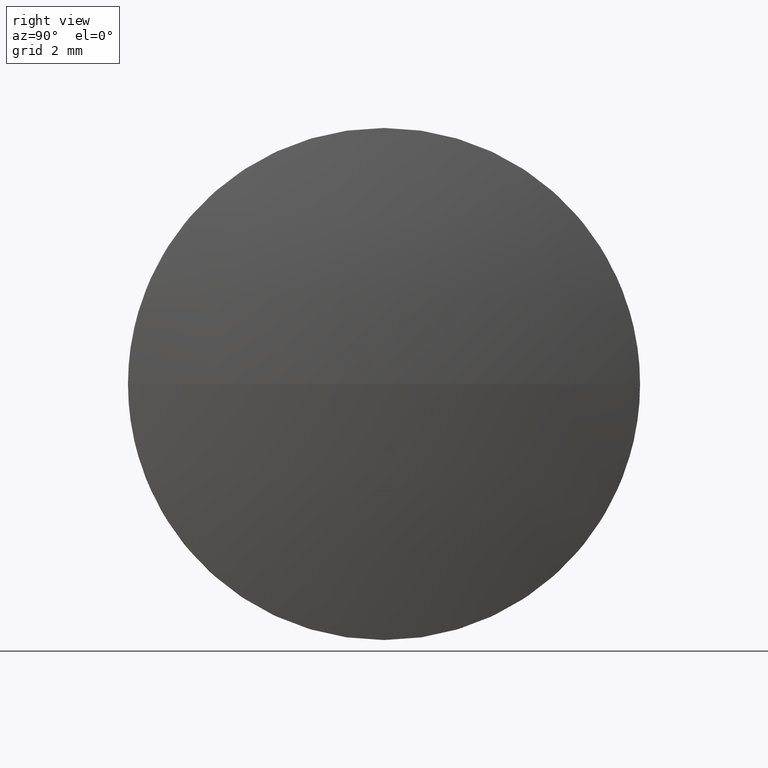
[diagram: clean part render]
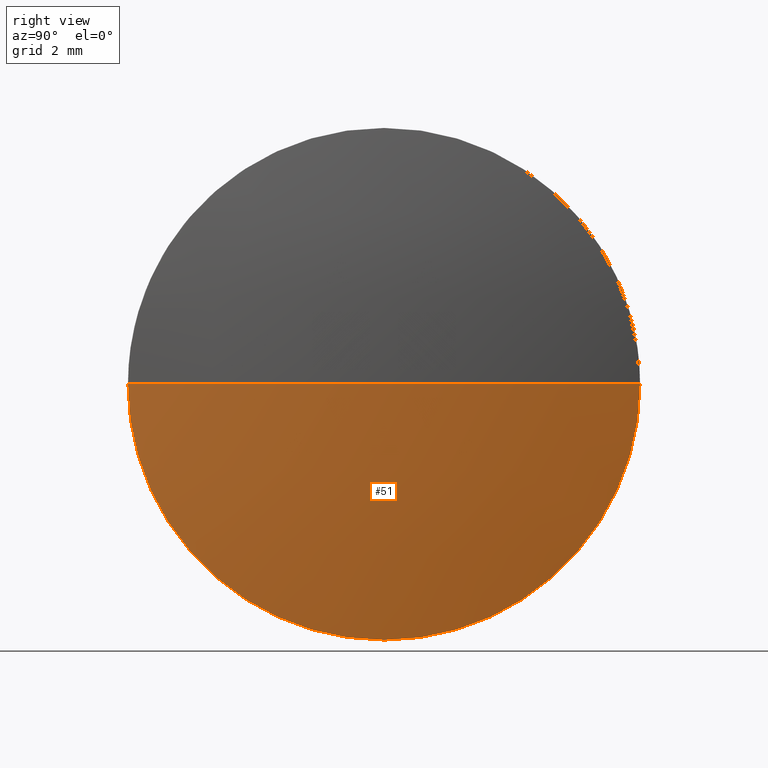
[diagram: same view with one face highlighted and labeled with its STEP entity id]
A machine part, right view. The second image highlights one B-rep face of the part: STEP entity #51.
In plain terms, the highlighted spherical surface has radius 25.7552 mm.
Its self-contained STEP definition (entity closure, byte-faithful):
#2 = VERTEX_POINT ( 'NONE', #40 ) ;
#21 = EDGE_CURVE ( 'NONE', #2, #185, #68, .T. ) ;
#26 = CARTESIAN_POINT ( 'NONE',  ( 464.8755895717470100, 129.0640257703732300, 0.0000000000000000000 ) ) ;
#28 = CIRCLE ( 'NONE', #130, 5.000000000000004400 ) ;
#31 = DIRECTION ( 'NONE',  ( 0.0000000000000000000, 1.224646799147353200E-016, -1.000000000000000000 ) ) ;
#34 = SPHERICAL_SURFACE ( 'NONE', #84, 25.75520408163263400 ) ;
#40 = CARTESIAN_POINT ( 'NONE',  ( 465.3655895717470200, 129.0640257703731500, 0.0000000000000000000 ) ) ;
#42 = EDGE_LOOP ( 'NONE', ( #112, #87, #57, #64 ) ) ;
#51 = ADVANCED_FACE ( 'NONE', ( #179 ), #34, .T. ) ;
#57 = ORIENTED_EDGE ( 'NONE', *, *, #94, .F. ) ;
#59 = EDGE_CURVE ( 'NONE', #2, #145, #80, .T. ) ;
#63 = CIRCLE ( 'NONE', #161, 5.000000000000004400 ) ;
#64 = ORIENTED_EDGE ( 'NONE', *, *, #176, .F. ) ;
#68 = CIRCLE ( 'NONE', #97, 25.75520408163262000 ) ;
#71 = DIRECTION ( 'NONE',  ( 0.0000000000000000000, 0.0000000000000000000, 1.000000000000000000 ) ) ;
#72 = DIRECTION ( 'NONE',  ( -1.000000000000000000, -0.0000000000000000000, -0.0000000000000000000 ) ) ;
#74 = DIRECTION ( 'NONE',  ( 0.0000000000000000000, 0.0000000000000000000, 1.000000000000000000 ) ) ;
#76 = VERTEX_POINT ( 'NONE', #108 ) ;
#80 = CIRCLE ( 'NONE', #146, 25.75520408163264800 ) ;
#84 = AXIS2_PLACEMENT_3D ( 'NONE', #90, #137, #155 ) ;
#87 = ORIENTED_EDGE ( 'NONE', *, *, #59, .T. ) ;
#88 = CARTESIAN_POINT ( 'NONE',  ( 439.6103854901143700, 129.0640257703731500, 0.0000000000000000000 ) ) ;
#90 = CARTESIAN_POINT ( 'NONE',  ( 439.6103854901143700, 129.0640257703731500, 0.0000000000000000000 ) ) ;
#91 = CARTESIAN_POINT ( 'NONE',  ( 439.6103854901143700, 129.0640257703731500, 0.0000000000000000000 ) ) ;
#94 = EDGE_CURVE ( 'NONE', #76, #145, #28, .T. ) ;
#97 = AXIS2_PLACEMENT_3D ( 'NONE', #88, #121, #168 ) ;
#108 = CARTESIAN_POINT ( 'NONE',  ( 464.8755895717470100, 129.0640257703732300, -5.000000000000004400 ) ) ;
#112 = ORIENTED_EDGE ( 'NONE', *, *, #21, .F. ) ;
#121 = DIRECTION ( 'NONE',  ( -0.0000000000000000000, 0.0000000000000000000, 1.000000000000000000 ) ) ;
#130 = AXIS2_PLACEMENT_3D ( 'NONE', #177, #72, #71 ) ;
#137 = DIRECTION ( 'NONE',  ( -0.0000000000000000000, 0.0000000000000000000, -1.000000000000000000 ) ) ;
#141 = DIRECTION ( 'NONE',  ( 0.0000000000000000000, 1.000000000000000000, 1.224646799147352700E-016 ) ) ;
#145 = VERTEX_POINT ( 'NONE', #181 ) ;
#146 = AXIS2_PLACEMENT_3D ( 'NONE', #91, #31, #141 ) ;
#155 = DIRECTION ( 'NONE',  ( 0.0000000000000000000, 1.000000000000000000, 0.0000000000000000000 ) ) ;
#161 = AXIS2_PLACEMENT_3D ( 'NONE', #26, #165, #74 ) ;
#165 = DIRECTION ( 'NONE',  ( -1.000000000000000000, -0.0000000000000000000, -0.0000000000000000000 ) ) ;
#168 = DIRECTION ( 'NONE',  ( 1.000000000000000000, 0.0000000000000000000, 0.0000000000000000000 ) ) ;
#176 = EDGE_CURVE ( 'NONE', #185, #76, #63, .T. ) ;
#177 = CARTESIAN_POINT ( 'NONE',  ( 464.8755895717470100, 129.0640257703732300, 0.0000000000000000000 ) ) ;
#179 = FACE_OUTER_BOUND ( 'NONE', #42, .T. ) ;
#180 = CARTESIAN_POINT ( 'NONE',  ( 464.8755895717470100, 134.0640257703732100, 0.0000000000000000000 ) ) ;
#181 = CARTESIAN_POINT ( 'NONE',  ( 464.8755895717470100, 124.0640257703731800, -6.123233995736738700E-016 ) ) ;
#185 = VERTEX_POINT ( 'NONE', #180 ) ;